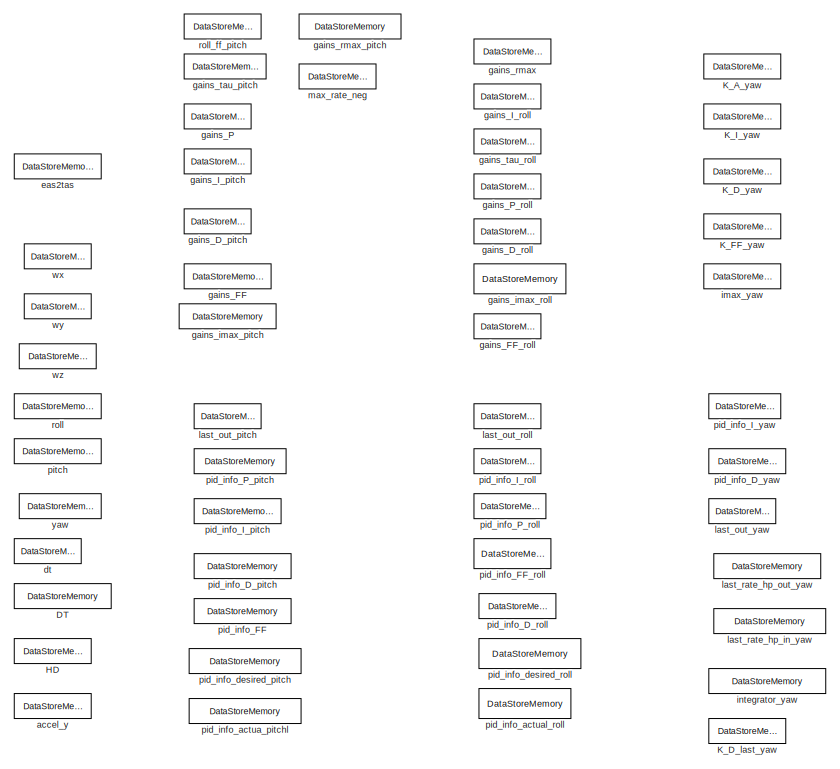
[diagram: root canvas - part 1/7, top right region]
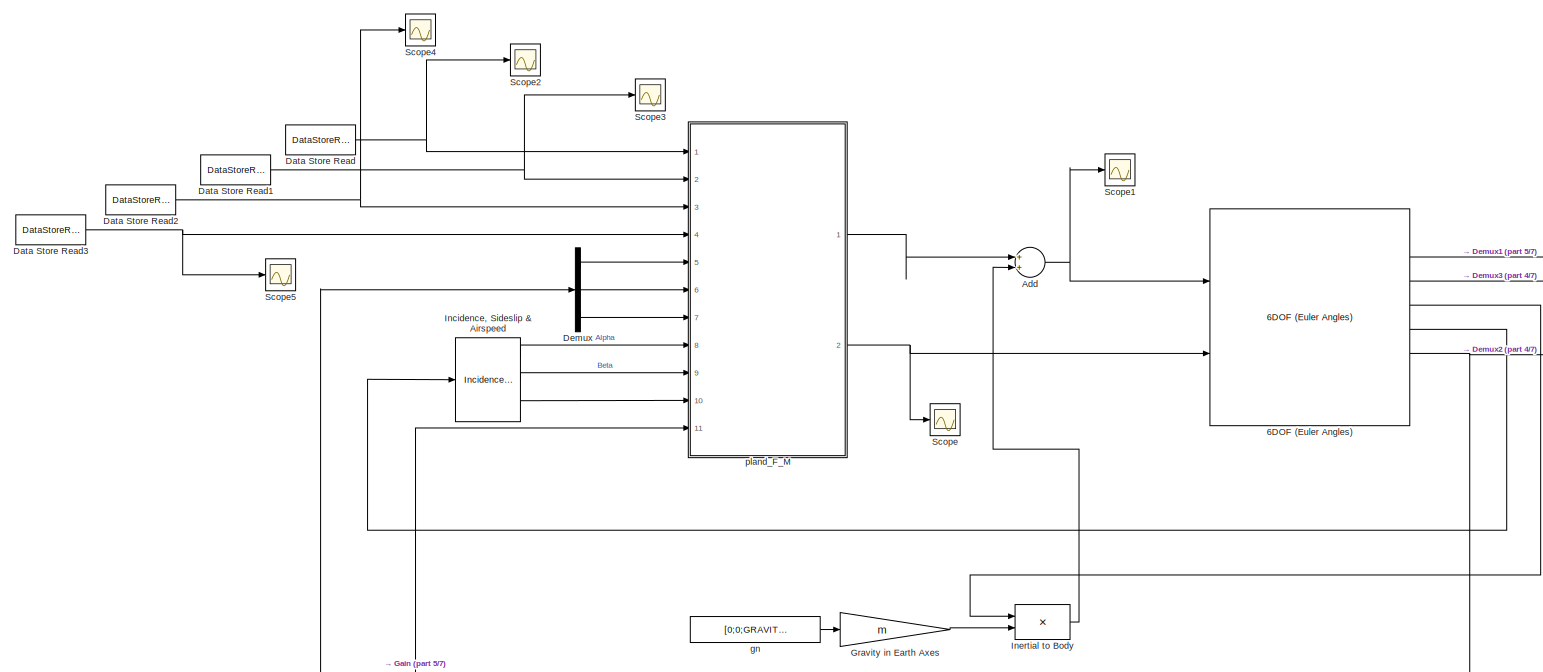
[diagram: root canvas - part 2/7, top left region]
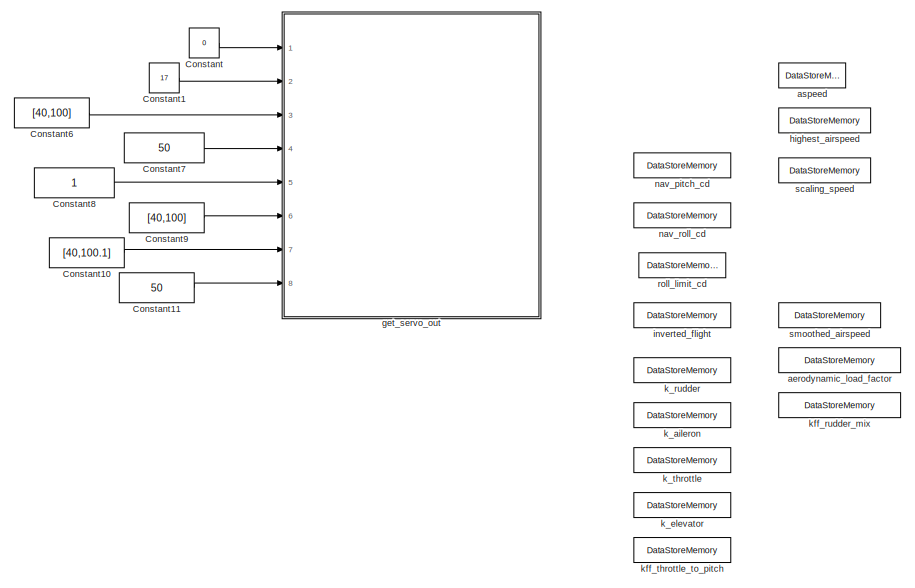
[diagram: root canvas - part 3/7, top right region]
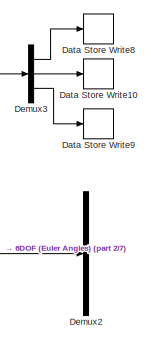
[diagram: root canvas - part 4/7, top center region]
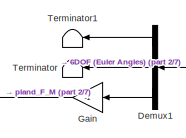
[diagram: root canvas - part 5/7, middle left region]
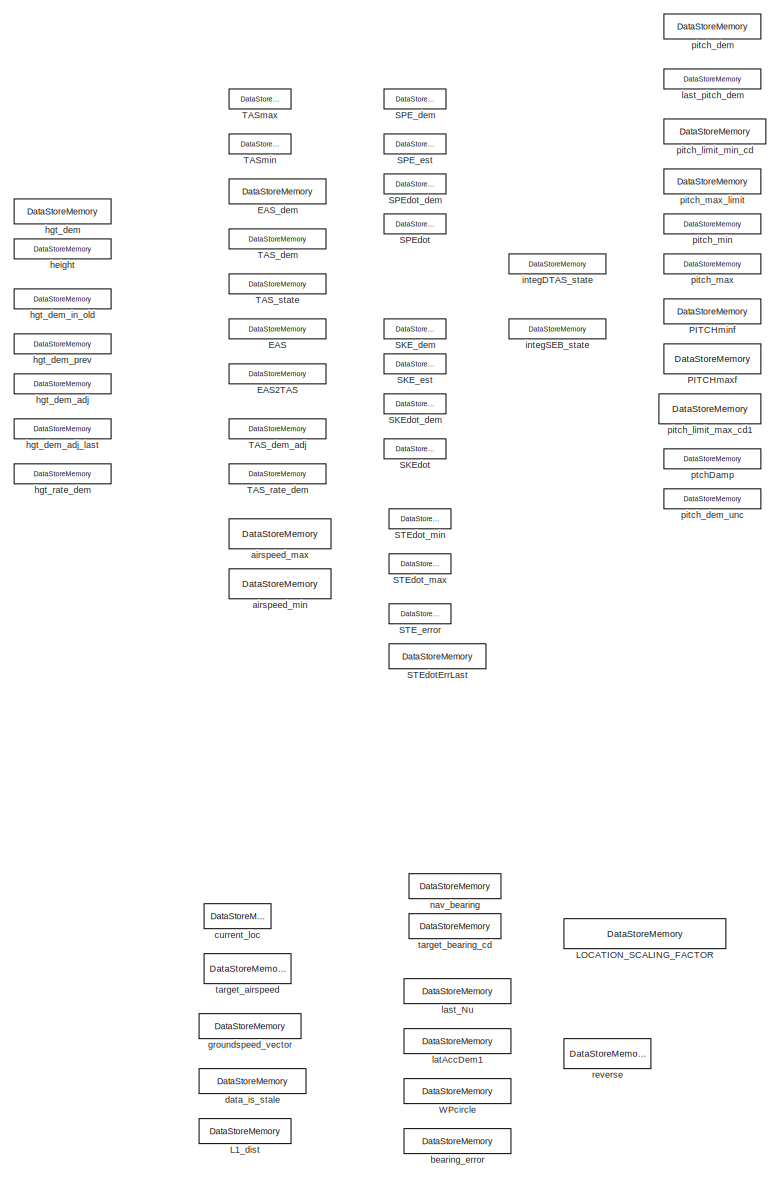
[diagram: root canvas - part 6/7, bottom right region]
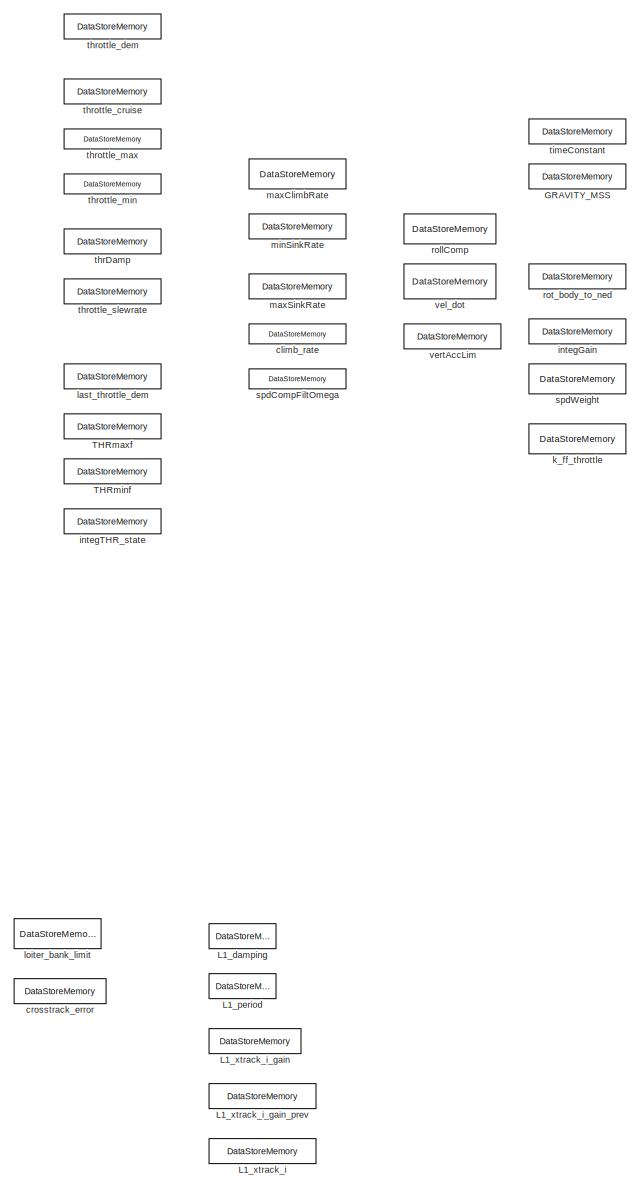
[diagram: root canvas - part 7/7, bottom right region]
MODEL slx_bc684115138f
KIND model
CONFIG AbsTol = auto
CONFIG EnableMultiTasking = off
CONFIG FixedStep = dt
CONFIG MaxStep = auto
CONFIG MinStep = auto
CONFIG RelTol = 1e-3
CONFIG SampleTimeConstraint = Unconstrained
CONFIG Solver = FixedStepAuto
CONFIG SolverName = FixedStepAuto
CONFIG StartTime = 0.0
CONFIG StopTime = 10.0
BLOCK [Reference] 6DOF (Euler Angles)  REF=shared6dof/6DOF (Euler Angles)
  Ports = [2, 8]
  SourceBlock = shared6dof/6DOF (Euler Angles)
  SourceProductBaseCode = AE
  SourceProductName = Aerospace Blockset
  SourceType = 6DOF EoM (Body Axis)
BLOCK [Sum] Add
  InputSameDT = off
  OutDataTypeStr = Inherit: Inherit via internal rule
  Ports = [2, 1]
  SaturateOnIntegerOverflow = off
BLOCK [Constant] Constant
  Value = 0
BLOCK [Constant] Constant1
  Value = 17
BLOCK [Constant] Constant10
  Value = [40,100.1]
BLOCK [Constant] Constant11
  Value = 50
BLOCK [Constant] Constant6
  Value = [40,100]
BLOCK [Constant] Constant7
  Value = 50
BLOCK [Constant] Constant8
BLOCK [Constant] Constant9
  Value = [40,100]
BLOCK [DataStoreMemory] DT
  DataStoreName = DT
  InitialValue = DT
  OutDataTypeStr = double
  ReadBeforeWriteMsg = warning
  ShowAdditionalParam = off
  SignalType = real
  VectorParams1D = off
  WriteAfterReadMsg = warning
  WriteAfterWriteMsg = warning
BLOCK [DataStoreRead] Data Store Read
  DataStoreName = k_rudder
  Ports = [0, 1]
BLOCK [DataStoreRead] Data Store Read1
  DataStoreName = k_aileron
  Ports = [0, 1]
BLOCK [DataStoreRead] Data Store Read2
  DataStoreName = k_throttle
  Ports = [0, 1]
BLOCK [DataStoreRead] Data Store Read3
  DataStoreName = k_elevator
  Ports = [0, 1]
BLOCK [DataStoreWrite] Data Store Write10
  DataStoreName = pitch
  Ports = [1]
BLOCK [DataStoreWrite] Data Store Write8
  DataStoreName = roll
  Ports = [1]
BLOCK [DataStoreWrite] Data Store Write9
  DataStoreName = yaw
  Ports = [1]
BLOCK [Demux] Demux
  DisplayOption = bar
  Outputs = 3
  Ports = [1, 3]
BLOCK [Demux] Demux1
  DisplayOption = bar
  Outputs = 3
  Ports = [1, 3]
BLOCK [Demux] Demux2
  DisplayOption = bar
  Outputs = 3
  Ports = [1, 3]
BLOCK [Demux] Demux3
  DisplayOption = bar
  Outputs = 3
  Ports = [1, 3]
BLOCK [DataStoreMemory] EAS
  DataStoreName = EAS
  InitialValue = EAS
  OutDataTypeStr = double
  ReadBeforeWriteMsg = warning
  ShowAdditionalParam = off
  SignalType = real
  VectorParams1D = off
  WriteAfterReadMsg = warning
  WriteAfterWriteMsg = warning
BLOCK [DataStoreMemory] EAS2TAS
  DataStoreName = EAS2TAS
  InitialValue = EAS2TAS
  OutDataTypeStr = double
  ReadBeforeWriteMsg = warning
  ShowAdditionalParam = off
  SignalType = real
  VectorParams1D = off
  WriteAfterReadMsg = warning
  WriteAfterWriteMsg = warning
BLOCK [DataStoreMemory] EAS_dem
  DataStoreName = EAS_dem
  InitialValue = EAS_dem
  OutDataTypeStr = double
  ReadBeforeWriteMsg = warning
  ShowAdditionalParam = off
  SignalType = real
  VectorParams1D = off
  WriteAfterReadMsg = warning
  WriteAfterWriteMsg = warning
BLOCK [DataStoreMemory] GRAVITY_MSS
  DataStoreName = GRAVITY_MSS
  InitialValue = GRAVITY_MSS
  OutDataTypeStr = double
  ReadBeforeWriteMsg = warning
  ShowAdditionalParam = off
  SignalType = real
  VectorParams1D = off
  WriteAfterReadMsg = warning
  WriteAfterWriteMsg = warning
BLOCK [Gain] Gain
  Gain = -1
  OutDataTypeStr = Inherit: Inherit via internal rule
  ParamDataTypeStr = Inherit: Inherit via internal rule
  SaturateOnIntegerOverflow = off
BLOCK [Gain] Gravity in Earth Axes
  Gain = m
BLOCK [DataStoreMemory] HD
  DataStoreName = HD
  InitialValue = HD
  OutDataTypeStr = double
  ReadBeforeWriteMsg = warning
  ShowAdditionalParam = off
  SignalType = real
  WriteAfterReadMsg = warning
  WriteAfterWriteMsg = warning
BLOCK [Reference] Incidence, Sideslip & Airspeed  REF=aerolibasang/Incidence, Sideslip,
& Airspeed
  Ports = [1, 3]
  SourceBlock = aerolibasang/Incidence, Sideslip,\n& Airspeed
  SourceProductBaseCode = AE
  SourceProductName = Aerospace Blockset
  SourceType = Incidence,Sideslip,&Airspeed
BLOCK [Product] Inertial to Body
  Multiplication = Matrix(*)
  Ports = [2, 1]
  RndMeth = Floor
BLOCK [DataStoreMemory] K_A_yaw
  DataStoreName = K_A_yaw
  InitialValue = K_A_yaw
  OutDataTypeStr = double
  ReadBeforeWriteMsg = warning
  ShowAdditionalParam = off
  SignalType = real
  WriteAfterReadMsg = warning
  WriteAfterWriteMsg = warning
BLOCK [DataStoreMemory] K_D_last_yaw
  DataStoreName = K_D_last_yaw
  InitialValue = K_D_last_yaw
  OutDataTypeStr = double
  ReadBeforeWriteMsg = warning
  ShowAdditionalParam = off
  SignalType = real
  WriteAfterReadMsg = warning
  WriteAfterWriteMsg = warning
BLOCK [DataStoreMemory] K_D_yaw
  DataStoreName = K_D_yaw
  InitialValue = K_D_yaw
  OutDataTypeStr = double
  ReadBeforeWriteMsg = warning
  ShowAdditionalParam = off
  SignalType = real
  WriteAfterReadMsg = warning
  WriteAfterWriteMsg = warning
BLOCK [DataStoreMemory] K_FF_yaw
  DataStoreName = K_FF_yaw
  InitialValue = K_FF_yaw
  OutDataTypeStr = double
  ReadBeforeWriteMsg = warning
  ShowAdditionalParam = off
  SignalType = real
  WriteAfterReadMsg = warning
  WriteAfterWriteMsg = warning
BLOCK [DataStoreMemory] K_I_yaw
  DataStoreName = K_I_yaw
  InitialValue = K_I_yaw
  OutDataTypeStr = double
  ReadBeforeWriteMsg = warning
  ShowAdditionalParam = off
  SignalType = real
  WriteAfterReadMsg = warning
  WriteAfterWriteMsg = warning
BLOCK [DataStoreMemory] L1_damping
  DataStoreName = L1_damping
  InitialValue = L1_damping
  OutDataTypeStr = double
  ReadBeforeWriteMsg = warning
  ShowAdditionalParam = off
  SignalType = real
  VectorParams1D = off
  WriteAfterReadMsg = warning
  WriteAfterWriteMsg = warning
BLOCK [DataStoreMemory] L1_dist
  DataStoreName = L1_dist
  InitialValue = L1_dist
  OutDataTypeStr = double
  ReadBeforeWriteMsg = warning
  ShowAdditionalParam = off
  SignalType = real
  VectorParams1D = off
  WriteAfterReadMsg = warning
  WriteAfterWriteMsg = warning
BLOCK [DataStoreMemory] L1_period
  DataStoreName = L1_period
  InitialValue = L1_period
  OutDataTypeStr = double
  ReadBeforeWriteMsg = warning
  ShowAdditionalParam = off
  SignalType = real
  VectorParams1D = off
  WriteAfterReadMsg = warning
  WriteAfterWriteMsg = warning
BLOCK [DataStoreMemory] L1_xtrack_i
  DataStoreName = L1_xtrack_i
  InitialValue = L1_xtrack_i
  OutDataTypeStr = double
  ReadBeforeWriteMsg = warning
  ShowAdditionalParam = off
  SignalType = real
  VectorParams1D = off
  WriteAfterReadMsg = warning
  WriteAfterWriteMsg = warning
BLOCK [DataStoreMemory] L1_xtrack_i_gain
  DataStoreName = L1_xtrack_i_gain
  InitialValue = L1_xtrack_i_gain
  OutDataTypeStr = double
  ReadBeforeWriteMsg = warning
  ShowAdditionalParam = off
  SignalType = real
  VectorParams1D = off
  WriteAfterReadMsg = warning
  WriteAfterWriteMsg = warning
BLOCK [DataStoreMemory] L1_xtrack_i_gain_prev
  DataStoreName = L1_xtrack_i_gain_prev
  InitialValue = L1_xtrack_i_gain_prev
  OutDataTypeStr = double
  ReadBeforeWriteMsg = warning
  ShowAdditionalParam = off
  SignalType = real
  VectorParams1D = off
  WriteAfterReadMsg = warning
  WriteAfterWriteMsg = warning
BLOCK [DataStoreMemory] LOCATION_SCALING_FACTOR
  DataStoreName = LOCATION_SCALING_FACTOR
  InitialValue = LOCATION_SCALING_FACTOR
  OutDataTypeStr = double
  ReadBeforeWriteMsg = warning
  ShowAdditionalParam = off
  SignalType = real
  VectorParams1D = off
  WriteAfterReadMsg = warning
  WriteAfterWriteMsg = warning
BLOCK [DataStoreMemory] PITCHmaxf
  DataStoreName = PITCHmaxf
  InitialValue = PITCHmaxf
  OutDataTypeStr = double
  ReadBeforeWriteMsg = warning
  ShowAdditionalParam = off
  SignalType = real
  VectorParams1D = off
  WriteAfterReadMsg = warning
  WriteAfterWriteMsg = warning
BLOCK [DataStoreMemory] PITCHminf
  DataStoreName = PITCHminf
  InitialValue = PITCHminf
  OutDataTypeStr = double
  ReadBeforeWriteMsg = warning
  ShowAdditionalParam = off
  SignalType = real
  VectorParams1D = off
  WriteAfterReadMsg = warning
  WriteAfterWriteMsg = warning
BLOCK [DataStoreMemory] SKE_dem
  DataStoreName = SKE_dem
  InitialValue = SKE_dem
  OutDataTypeStr = double
  ReadBeforeWriteMsg = warning
  ShowAdditionalParam = off
  SignalType = real
  VectorParams1D = off
  WriteAfterReadMsg = warning
  WriteAfterWriteMsg = warning
BLOCK [DataStoreMemory] SKE_est
  DataStoreName = SKE_est
  InitialValue = SKE_est
  OutDataTypeStr = double
  ReadBeforeWriteMsg = warning
  ShowAdditionalParam = off
  SignalType = real
  VectorParams1D = off
  WriteAfterReadMsg = warning
  WriteAfterWriteMsg = warning
BLOCK [DataStoreMemory] SKEdot
  DataStoreName = SKEdot
  InitialValue = SKEdot
  OutDataTypeStr = double
  ReadBeforeWriteMsg = warning
  ShowAdditionalParam = off
  SignalType = real
  VectorParams1D = off
  WriteAfterReadMsg = warning
  WriteAfterWriteMsg = warning
BLOCK [DataStoreMemory] SKEdot_dem
  DataStoreName = SKEdot_dem
  InitialValue = SKEdot_dem
  OutDataTypeStr = double
  ReadBeforeWriteMsg = warning
  ShowAdditionalParam = off
  SignalType = real
  VectorParams1D = off
  WriteAfterReadMsg = warning
  WriteAfterWriteMsg = warning
BLOCK [DataStoreMemory] SPE_dem
  DataStoreName = SPE_dem
  InitialValue = SPE_dem
  OutDataTypeStr = double
  ReadBeforeWriteMsg = warning
  ShowAdditionalParam = off
  SignalType = real
  VectorParams1D = off
  WriteAfterReadMsg = warning
  WriteAfterWriteMsg = warning
BLOCK [DataStoreMemory] SPE_est
  DataStoreName = SPE_est
  InitialValue = SPE_est
  OutDataTypeStr = double
  ReadBeforeWriteMsg = warning
  ShowAdditionalParam = off
  SignalType = real
  VectorParams1D = off
  WriteAfterReadMsg = warning
  WriteAfterWriteMsg = warning
BLOCK [DataStoreMemory] SPEdot
  DataStoreName = SPEdot
  InitialValue = SPEdot
  OutDataTypeStr = double
  ReadBeforeWriteMsg = warning
  ShowAdditionalParam = off
  SignalType = real
  VectorParams1D = off
  WriteAfterReadMsg = warning
  WriteAfterWriteMsg = warning
BLOCK [DataStoreMemory] SPEdot_dem
  DataStoreName = SPEdot_dem
  InitialValue = SPEdot_dem
  OutDataTypeStr = double
  ReadBeforeWriteMsg = warning
  ShowAdditionalParam = off
  SignalType = real
  VectorParams1D = off
  WriteAfterReadMsg = warning
  WriteAfterWriteMsg = warning
BLOCK [DataStoreMemory] STE_error
  DataStoreName = STE_error
  InitialValue = STE_error
  OutDataTypeStr = double
  ReadBeforeWriteMsg = warning
  ShowAdditionalParam = off
  SignalType = real
  VectorParams1D = off
  WriteAfterReadMsg = warning
  WriteAfterWriteMsg = warning
BLOCK [DataStoreMemory] STEdotErrLast
  DataStoreName = STEdotErrLast
  InitialValue = STEdotErrLast
  OutDataTypeStr = double
  ReadBeforeWriteMsg = warning
  ShowAdditionalParam = off
  SignalType = real
  VectorParams1D = off
  WriteAfterReadMsg = warning
  WriteAfterWriteMsg = warning
BLOCK [DataStoreMemory] STEdot_max
  DataStoreName = STEdot_max
  InitialValue = STEdot_max
  OutDataTypeStr = double
  ReadBeforeWriteMsg = warning
  ShowAdditionalParam = off
  SignalType = real
  VectorParams1D = off
  WriteAfterReadMsg = warning
  WriteAfterWriteMsg = warning
BLOCK [DataStoreMemory] STEdot_min
  DataStoreName = STEdot_min
  InitialValue = STEdot_min
  OutDataTypeStr = double
  ReadBeforeWriteMsg = warning
  ShowAdditionalParam = off
  SignalType = real
  VectorParams1D = off
  WriteAfterReadMsg = warning
  WriteAfterWriteMsg = warning
BLOCK [Scope] Scope
  Floating = off
  NumInputPorts = 1
  Ports = [1]
  ScopeSpecificationString = Simulink.scopes.TimeScopeBlockCfg('CurrentConfiguration', extmgr.ConfigurationSet(extmgr.Configuration('Core','General UI',true),extmgr.Configuration('Core','Source UI',true),extmgr.Configuration('Sources','WiredSimulink',true),extmgr.Configuration('Visuals','Time Domain',true,'SerializedDisplays',{struct('MinYLimReal','-1.49656','MaxYLimReal','6.05695','YLabelReal','','MinYLimMag','0.00000','MaxY...<+1697ch>
BLOCK [Scope] Scope1
  Floating = off
  NumInputPorts = 1
  Ports = [1]
  ScopeSpecificationString = Simulink.scopes.TimeScopeBlockCfg('CurrentConfiguration', extmgr.ConfigurationSet(extmgr.Configuration('Core','General UI',true),extmgr.Configuration('Core','Source UI',true),extmgr.Configuration('Sources','WiredSimulink',true,'DataLoggingVariableName','ScopeData1'),extmgr.Configuration('Visuals','Time Domain',true,'SerializedDisplays',{struct('MinYLimReal','-191.70517','MaxYLimReal','187.29828','...<+1772ch>
BLOCK [Scope] Scope2
  Floating = off
  NumInputPorts = 1
  Ports = [1]
  ScopeSpecificationString = Simulink.scopes.TimeScopeBlockCfg('CurrentConfiguration', extmgr.ConfigurationSet(extmgr.Configuration('Core','General UI',true),extmgr.Configuration('Core','Source UI',true),extmgr.Configuration('Sources','WiredSimulink',true,'DataLoggingVariableName','ScopeData2'),extmgr.Configuration('Visuals','Time Domain',true,'SerializedDisplays',{struct('MinYLimReal','-1.00000','MaxYLimReal','1.00000','YLab...<+1719ch>
BLOCK [Scope] Scope3
  Floating = off
  NumInputPorts = 1
  Ports = [1]
  ScopeSpecificationString = Simulink.scopes.TimeScopeBlockCfg('CurrentConfiguration', extmgr.ConfigurationSet(extmgr.Configuration('Core','General UI',true),extmgr.Configuration('Core','Source UI',true),extmgr.Configuration('Sources','WiredSimulink',true,'DataLoggingVariableName','ScopeData3'),extmgr.Configuration('Visuals','Time Domain',true,'SerializedDisplays',{struct('MinYLimReal','-265.625','MaxYLimReal','2390.625','YLa...<+1753ch>
BLOCK [Scope] Scope4
  Floating = off
  NumInputPorts = 1
  Ports = [1]
  ScopeSpecificationString = Simulink.scopes.TimeScopeBlockCfg('CurrentConfiguration', extmgr.ConfigurationSet(extmgr.Configuration('Core','General UI',true),extmgr.Configuration('Core','Source UI',true),extmgr.Configuration('Sources','WiredSimulink',true,'DataLoggingVariableName','ScopeData4'),extmgr.Configuration('Visuals','Time Domain',true,'SerializedDisplays',{struct('MinYLimReal','-0.00125','MaxYLimReal','0.01124','YLab...<+1747ch>
BLOCK [Scope] Scope5
  Floating = off
  NumInputPorts = 1
  Ports = [1]
  ScopeSpecificationString = Simulink.scopes.TimeScopeBlockCfg('CurrentConfiguration', extmgr.ConfigurationSet(extmgr.Configuration('Core','General UI',true),extmgr.Configuration('Core','Source UI',true),extmgr.Configuration('Sources','WiredSimulink',true,'DataLoggingVariableName','ScopeData5'),extmgr.Configuration('Visuals','Time Domain',true,'SerializedDisplays',{struct('MinYLimReal','-376.59375','MaxYLimReal','3389.34375',...<+1738ch>
BLOCK [DataStoreMemory] TAS_dem
  DataStoreName = TAS_dem
  InitialValue = TAS_dem
  OutDataTypeStr = double
  ReadBeforeWriteMsg = warning
  ShowAdditionalParam = off
  SignalType = real
  VectorParams1D = off
  WriteAfterReadMsg = warning
  WriteAfterWriteMsg = warning
BLOCK [DataStoreMemory] TAS_dem_adj
  DataStoreName = TAS_dem_adj
  InitialValue = TAS_dem_adj
  OutDataTypeStr = double
  ReadBeforeWriteMsg = warning
  ShowAdditionalParam = off
  SignalType = real
  VectorParams1D = off
  WriteAfterReadMsg = warning
  WriteAfterWriteMsg = warning
BLOCK [DataStoreMemory] TAS_rate_dem
  DataStoreName = TAS_rate_dem
  InitialValue = TAS_rate_dem
  OutDataTypeStr = double
  ReadBeforeWriteMsg = warning
  ShowAdditionalParam = off
  SignalType = real
  VectorParams1D = off
  WriteAfterReadMsg = warning
  WriteAfterWriteMsg = warning
BLOCK [DataStoreMemory] TAS_state
  DataStoreName = TAS_state
  InitialValue = TAS_state
  OutDataTypeStr = double
  ReadBeforeWriteMsg = warning
  ShowAdditionalParam = off
  SignalType = real
  VectorParams1D = off
  WriteAfterReadMsg = warning
  WriteAfterWriteMsg = warning
BLOCK [DataStoreMemory] TASmax
  DataStoreName = TASmax
  InitialValue = TASmax
  OutDataTypeStr = double
  ReadBeforeWriteMsg = warning
  ShowAdditionalParam = off
  SignalType = real
  VectorParams1D = off
  WriteAfterReadMsg = warning
  WriteAfterWriteMsg = warning
BLOCK [DataStoreMemory] TASmin
  DataStoreName = TASmin
  InitialValue = TASmin
  OutDataTypeStr = double
  ReadBeforeWriteMsg = warning
  ShowAdditionalParam = off
  SignalType = real
  VectorParams1D = off
  WriteAfterReadMsg = warning
  WriteAfterWriteMsg = warning
BLOCK [DataStoreMemory] THRmaxf
  DataStoreName = THRmaxf
  InitialValue = THRmaxf
  OutDataTypeStr = double
  ReadBeforeWriteMsg = warning
  ShowAdditionalParam = off
  SignalType = real
  VectorParams1D = off
  WriteAfterReadMsg = warning
  WriteAfterWriteMsg = warning
BLOCK [DataStoreMemory] THRminf
  DataStoreName = THRminf
  InitialValue = THRminf
  OutDataTypeStr = double
  ReadBeforeWriteMsg = warning
  ShowAdditionalParam = off
  SignalType = real
  VectorParams1D = off
  WriteAfterReadMsg = warning
  WriteAfterWriteMsg = warning
BLOCK [Terminator] Terminator
BLOCK [Terminator] Terminator1
BLOCK [DataStoreMemory] WPcircle
  DataStoreName = WPcircle
  InitialValue = WPcircle
  OutDataTypeStr = double
  ReadBeforeWriteMsg = warning
  ShowAdditionalParam = off
  SignalType = real
  VectorParams1D = off
  WriteAfterReadMsg = warning
  WriteAfterWriteMsg = warning
BLOCK [DataStoreMemory] accel_y
  DataStoreName = accel_y
  InitialValue = accel_y
  OutDataTypeStr = double
  ReadBeforeWriteMsg = warning
  ShowAdditionalParam = off
  SignalType = real
  WriteAfterReadMsg = warning
  WriteAfterWriteMsg = warning
BLOCK [DataStoreMemory] aerodynamic_load_factor
  DataStoreName = aerodynamic_load_factor
  InitialValue = aerodynamic_load_factor
  OutDataTypeStr = double
  ReadBeforeWriteMsg = warning
  ShowAdditionalParam = off
  SignalType = real
  WriteAfterReadMsg = warning
  WriteAfterWriteMsg = warning
BLOCK [DataStoreMemory] airspeed_max
  DataStoreName = airspeed_max
  InitialValue = airspeed_max
  OutDataTypeStr = double
  ReadBeforeWriteMsg = warning
  ShowAdditionalParam = off
  SignalType = real
  VectorParams1D = off
  WriteAfterReadMsg = warning
  WriteAfterWriteMsg = warning
BLOCK [DataStoreMemory] airspeed_min
  DataStoreName = airspeed_min
  InitialValue = airspeed_min
  OutDataTypeStr = double
  ReadBeforeWriteMsg = warning
  ShowAdditionalParam = off
  SignalType = real
  VectorParams1D = off
  WriteAfterReadMsg = warning
  WriteAfterWriteMsg = warning
BLOCK [DataStoreMemory] aspeed
  DataStoreName = aspeed
  InitialValue = aspeed
  OutDataTypeStr = double
  ReadBeforeWriteMsg = warning
  ShowAdditionalParam = off
  SignalType = real
  WriteAfterReadMsg = warning
  WriteAfterWriteMsg = warning
BLOCK [DataStoreMemory] bearing_error
  DataStoreName = bearing_error
  InitialValue = bearing_error
  OutDataTypeStr = double
  ReadBeforeWriteMsg = warning
  ShowAdditionalParam = off
  SignalType = real
  VectorParams1D = off
  WriteAfterReadMsg = warning
  WriteAfterWriteMsg = warning
BLOCK [DataStoreMemory] climb_rate
  DataStoreName = climb_rate
  InitialValue = climb_rate
  OutDataTypeStr = double
  ReadBeforeWriteMsg = warning
  ShowAdditionalParam = off
  SignalType = real
  VectorParams1D = off
  WriteAfterReadMsg = warning
  WriteAfterWriteMsg = warning
BLOCK [DataStoreMemory] crosstrack_error
  DataStoreName = crosstrack_error
  InitialValue = crosstrack_error
  OutDataTypeStr = double
  ReadBeforeWriteMsg = warning
  ShowAdditionalParam = off
  SignalType = real
  VectorParams1D = off
  WriteAfterReadMsg = warning
  WriteAfterWriteMsg = warning
BLOCK [DataStoreMemory] current_loc
  DataStoreName = current_loc
  InitialValue = current_loc
  OutDataTypeStr = double
  ReadBeforeWriteMsg = warning
  ShowAdditionalParam = off
  SignalType = real
  VectorParams1D = off
  WriteAfterReadMsg = warning
  WriteAfterWriteMsg = warning
BLOCK [DataStoreMemory] data_is_stale
  DataStoreName = data_is_stale
  InitialValue = data_is_stale
  OutDataTypeStr = double
  ReadBeforeWriteMsg = warning
  ShowAdditionalParam = off
  SignalType = real
  VectorParams1D = off
  WriteAfterReadMsg = warning
  WriteAfterWriteMsg = warning
BLOCK [DataStoreMemory] dt
  DataStoreName = dt
  InitialValue = dt
  OutDataTypeStr = double
  ReadBeforeWriteMsg = warning
  ShowAdditionalParam = off
  SignalType = real
  WriteAfterReadMsg = warning
  WriteAfterWriteMsg = warning
BLOCK [DataStoreMemory] eas2tas
  DataStoreName = eas2tas
  InitialValue = eas2tas
  OutDataTypeStr = double
  ReadBeforeWriteMsg = warning
  ShowAdditionalParam = off
  SignalType = real
  WriteAfterReadMsg = warning
  WriteAfterWriteMsg = warning
BLOCK [DataStoreMemory] gains_D_pitch
  DataStoreName = gains_D_pitch
  InitialValue = gains_D_pitch
  OutDataTypeStr = double
  ReadBeforeWriteMsg = warning
  ShowAdditionalParam = off
  SignalType = real
  WriteAfterReadMsg = warning
  WriteAfterWriteMsg = warning
BLOCK [DataStoreMemory] gains_D_roll
  DataStoreName = gains_D_roll
  InitialValue = gains_D_roll
  OutDataTypeStr = double
  ReadBeforeWriteMsg = warning
  ShowAdditionalParam = off
  SignalType = real
  WriteAfterReadMsg = warning
  WriteAfterWriteMsg = warning
BLOCK [DataStoreMemory] gains_FF
  DataStoreName = gains_FF_pitch
  InitialValue = gains_FF_pitch
  OutDataTypeStr = double
  ReadBeforeWriteMsg = warning
  ShowAdditionalParam = off
  SignalType = real
  WriteAfterReadMsg = warning
  WriteAfterWriteMsg = warning
BLOCK [DataStoreMemory] gains_FF_roll
  DataStoreName = gains_FF_roll
  InitialValue = gains_FF_roll
  OutDataTypeStr = double
  ReadBeforeWriteMsg = warning
  ShowAdditionalParam = off
  SignalType = real
  WriteAfterReadMsg = warning
  WriteAfterWriteMsg = warning
BLOCK [DataStoreMemory] gains_I_pitch
  DataStoreName = gains_I_pitch
  InitialValue = gains_I_pitch
  OutDataTypeStr = double
  ReadBeforeWriteMsg = warning
  ShowAdditionalParam = off
  SignalType = real
  WriteAfterReadMsg = warning
  WriteAfterWriteMsg = warning
BLOCK [DataStoreMemory] gains_I_roll
  DataStoreName = gains_I_roll
  InitialValue = gains_I_roll
  OutDataTypeStr = double
  ReadBeforeWriteMsg = warning
  ShowAdditionalParam = off
  SignalType = real
  WriteAfterReadMsg = warning
  WriteAfterWriteMsg = warning
BLOCK [DataStoreMemory] gains_P
  DataStoreName = gains_P_pitch
  InitialValue = gains_P_pitch
  OutDataTypeStr = double
  ReadBeforeWriteMsg = warning
  ShowAdditionalParam = off
  SignalType = real
  WriteAfterReadMsg = warning
  WriteAfterWriteMsg = warning
BLOCK [DataStoreMemory] gains_P_roll
  DataStoreName = gains_P_roll
  InitialValue = gains_P_roll
  OutDataTypeStr = double
  ReadBeforeWriteMsg = warning
  ShowAdditionalParam = off
  SignalType = real
  WriteAfterReadMsg = warning
  WriteAfterWriteMsg = warning
BLOCK [DataStoreMemory] gains_imax_pitch
  DataStoreName = gains_imax_pitch
  InitialValue = gains_imax_pitch
  OutDataTypeStr = double
  ReadBeforeWriteMsg = warning
  ShowAdditionalParam = off
  SignalType = real
  WriteAfterReadMsg = warning
  WriteAfterWriteMsg = warning
BLOCK [DataStoreMemory] gains_imax_roll
  DataStoreName = gains_imax_roll
  InitialValue = gains_imax_roll
  OutDataTypeStr = double
  ReadBeforeWriteMsg = warning
  ShowAdditionalParam = off
  SignalType = real
  WriteAfterReadMsg = warning
  WriteAfterWriteMsg = warning
BLOCK [DataStoreMemory] gains_rmax
  DataStoreName = gains_rmax_roll
  InitialValue = gains_rmax_roll
  OutDataTypeStr = double
  ReadBeforeWriteMsg = warning
  ShowAdditionalParam = off
  SignalType = real
  WriteAfterReadMsg = warning
  WriteAfterWriteMsg = warning
BLOCK [DataStoreMemory] gains_rmax_pitch
  DataStoreName = gains_rmax_pitch
  InitialValue = gains_rmax_pitch
  OutDataTypeStr = double
  ReadBeforeWriteMsg = warning
  ShowAdditionalParam = off
  SignalType = real
  WriteAfterReadMsg = warning
  WriteAfterWriteMsg = warning
BLOCK [DataStoreMemory] gains_tau_pitch
  DataStoreName = gains_tau_pitch
  InitialValue = gains_tau_pitch
  OutDataTypeStr = double
  ReadBeforeWriteMsg = warning
  ShowAdditionalParam = off
  SignalType = real
  WriteAfterReadMsg = warning
  WriteAfterWriteMsg = warning
BLOCK [DataStoreMemory] gains_tau_roll
  DataStoreName = gains_tau_roll
  InitialValue = gains_tau_roll
  OutDataTypeStr = double
  ReadBeforeWriteMsg = warning
  ShowAdditionalParam = off
  SignalType = real
  WriteAfterReadMsg = warning
  WriteAfterWriteMsg = warning
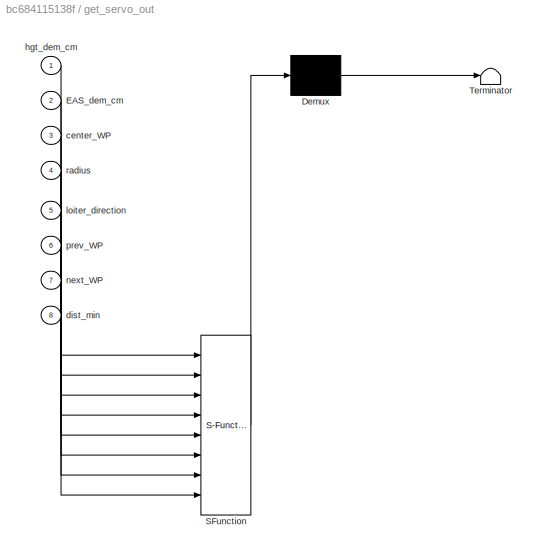
BLOCK [SubSystem] get_servo_out
  ErrorFcn = Stateflow.Translate.translate
  PermitHierarchicalResolution = ExplicitOnly
  Ports = [8]
  RequestExecContextInheritance = off
  SFBlockType = MATLAB Function
  TreatAsAtomicUnit = on
BLOCK [Demux] get_servo_out/ Demux 
  Outputs = 1
  Ports = [1, 1]
BLOCK [S-Function] get_servo_out/ SFunction 
  EnableBusSupport = on
  FunctionName = sf_sfun
  PortCounts = [8 1]
  Ports = [8, 1]
  SFcnIsStateOwnerBlock = off
  SFunctionDeploymentMode = off
  Tag = Stateflow S-Function att1 2
BLOCK [Terminator] get_servo_out/ Terminator 
BLOCK [Inport] get_servo_out/EAS_dem_cm
  IconDisplay = Port number
  Port = 2
BLOCK [Inport] get_servo_out/center_WP
  IconDisplay = Port number
  Port = 3
BLOCK [Inport] get_servo_out/dist_min
  IconDisplay = Port number
  Port = 8
BLOCK [Inport] get_servo_out/hgt_dem_cm
  IconDisplay = Port number
BLOCK [Inport] get_servo_out/loiter_direction
  IconDisplay = Port number
  Port = 5
BLOCK [Inport] get_servo_out/next_WP
  IconDisplay = Port number
  Port = 7
BLOCK [Inport] get_servo_out/prev_WP
  IconDisplay = Port number
  Port = 6
BLOCK [Inport] get_servo_out/radius
  IconDisplay = Port number
  Port = 4
BLOCK [Constant] gn
  Value = [0;0;GRAVITY_MSS]
BLOCK [DataStoreMemory] groundspeed_vector
  DataStoreName = groundspeed_vector
  InitialValue = groundspeed_vector
  OutDataTypeStr = double
  ReadBeforeWriteMsg = warning
  ShowAdditionalParam = off
  SignalType = real
  VectorParams1D = off
  WriteAfterReadMsg = warning
  WriteAfterWriteMsg = warning
BLOCK [DataStoreMemory] height
  DataStoreName = height
  InitialValue = height
  OutDataTypeStr = double
  ReadBeforeWriteMsg = warning
  ShowAdditionalParam = off
  SignalType = real
  VectorParams1D = off
  WriteAfterReadMsg = warning
  WriteAfterWriteMsg = warning
BLOCK [DataStoreMemory] hgt_dem
  DataStoreName = hgt_dem
  InitialValue = hgt_dem
  OutDataTypeStr = double
  ReadBeforeWriteMsg = warning
  ShowAdditionalParam = off
  SignalType = real
  VectorParams1D = off
  WriteAfterReadMsg = warning
  WriteAfterWriteMsg = warning
BLOCK [DataStoreMemory] hgt_dem_adj
  DataStoreName = hgt_dem_adj
  InitialValue = hgt_dem_adj
  OutDataTypeStr = double
  ReadBeforeWriteMsg = warning
  ShowAdditionalParam = off
  SignalType = real
  VectorParams1D = off
  WriteAfterReadMsg = warning
  WriteAfterWriteMsg = warning
BLOCK [DataStoreMemory] hgt_dem_adj_last
  DataStoreName = hgt_dem_adj_last
  InitialValue = hgt_dem_adj_last
  OutDataTypeStr = double
  ReadBeforeWriteMsg = warning
  ShowAdditionalParam = off
  SignalType = real
  VectorParams1D = off
  WriteAfterReadMsg = warning
  WriteAfterWriteMsg = warning
BLOCK [DataStoreMemory] hgt_dem_in_old
  DataStoreName = hgt_dem_in_old
  InitialValue = hgt_dem_in_old
  OutDataTypeStr = double
  ReadBeforeWriteMsg = warning
  ShowAdditionalParam = off
  SignalType = real
  VectorParams1D = off
  WriteAfterReadMsg = warning
  WriteAfterWriteMsg = warning
BLOCK [DataStoreMemory] hgt_dem_prev
  DataStoreName = hgt_dem_prev
  InitialValue = hgt_dem_prev
  OutDataTypeStr = double
  ReadBeforeWriteMsg = warning
  ShowAdditionalParam = off
  SignalType = real
  VectorParams1D = off
  WriteAfterReadMsg = warning
  WriteAfterWriteMsg = warning
BLOCK [DataStoreMemory] hgt_rate_dem
  DataStoreName = hgt_rate_dem
  InitialValue = hgt_rate_dem
  OutDataTypeStr = double
  ReadBeforeWriteMsg = warning
  ShowAdditionalParam = off
  SignalType = real
  VectorParams1D = off
  WriteAfterReadMsg = warning
  WriteAfterWriteMsg = warning
BLOCK [DataStoreMemory] highest_airspeed
  DataStoreName = highest_airspeed
  InitialValue = highest_airspeed
  OutDataTypeStr = double
  ReadBeforeWriteMsg = warning
  ShowAdditionalParam = off
  SignalType = real
  WriteAfterReadMsg = warning
  WriteAfterWriteMsg = warning
BLOCK [DataStoreMemory] imax_yaw
  DataStoreName = imax_yaw
  InitialValue = imax_yaw
  OutDataTypeStr = double
  ReadBeforeWriteMsg = warning
  ShowAdditionalParam = off
  SignalType = real
  WriteAfterReadMsg = warning
  WriteAfterWriteMsg = warning
BLOCK [DataStoreMemory] integDTAS_state
  DataStoreName = integDTAS_state
  InitialValue = integDTAS_state
  OutDataTypeStr = double
  ReadBeforeWriteMsg = warning
  ShowAdditionalParam = off
  SignalType = real
  VectorParams1D = off
  WriteAfterReadMsg = warning
  WriteAfterWriteMsg = warning
BLOCK [DataStoreMemory] integGain
  DataStoreName = integGain
  InitialValue = integGain
  OutDataTypeStr = double
  ReadBeforeWriteMsg = warning
  ShowAdditionalParam = off
  SignalType = real
  VectorParams1D = off
  WriteAfterReadMsg = warning
  WriteAfterWriteMsg = warning
BLOCK [DataStoreMemory] integSEB_state
  DataStoreName = integSEB_state
  InitialValue = integSEB_state
  OutDataTypeStr = double
  ReadBeforeWriteMsg = warning
  ShowAdditionalParam = off
  SignalType = real
  VectorParams1D = off
  WriteAfterReadMsg = warning
  WriteAfterWriteMsg = warning
BLOCK [DataStoreMemory] integTHR_state
  DataStoreName = integTHR_state
  InitialValue = integTHR_state
  OutDataTypeStr = double
  ReadBeforeWriteMsg = warning
  ShowAdditionalParam = off
  SignalType = real
  VectorParams1D = off
  WriteAfterReadMsg = warning
  WriteAfterWriteMsg = warning
BLOCK [DataStoreMemory] integrator_yaw
  DataStoreName = integrator_yaw
  InitialValue = integrator_yaw
  OutDataTypeStr = double
  ReadBeforeWriteMsg = warning
  ShowAdditionalParam = off
  SignalType = real
  WriteAfterReadMsg = warning
  WriteAfterWriteMsg = warning
BLOCK [DataStoreMemory] inverted_flight
  DataStoreName = inverted_flight
  InitialValue = inverted_flight
  OutDataTypeStr = double
  ReadBeforeWriteMsg = warning
  ShowAdditionalParam = off
  SignalType = real
  WriteAfterReadMsg = warning
  WriteAfterWriteMsg = warning
BLOCK [DataStoreMemory] k_aileron
  DataStoreName = k_aileron
  InitialValue = k_aileron
  OutDataTypeStr = double
  ReadBeforeWriteMsg = warning
  ShowAdditionalParam = off
  SignalType = real
  WriteAfterReadMsg = warning
  WriteAfterWriteMsg = warning
BLOCK [DataStoreMemory] k_elevator
  DataStoreName = k_elevator
  InitialValue = k_elevator
  OutDataTypeStr = double
  ReadBeforeWriteMsg = warning
  ShowAdditionalParam = off
  SignalType = real
  WriteAfterReadMsg = warning
  WriteAfterWriteMsg = warning
BLOCK [DataStoreMemory] k_ff_throttle
  DataStoreName = k_ff_throttle
  InitialValue = k_ff_throttle
  OutDataTypeStr = double
  ReadBeforeWriteMsg = warning
  ShowAdditionalParam = off
  SignalType = real
  VectorParams1D = off
  WriteAfterReadMsg = warning
  WriteAfterWriteMsg = warning
BLOCK [DataStoreMemory] k_rudder
  DataStoreName = k_rudder
  InitialValue = k_rudder
  OutDataTypeStr = double
  ReadBeforeWriteMsg = warning
  ShowAdditionalParam = off
  SignalType = real
  WriteAfterReadMsg = warning
  WriteAfterWriteMsg = warning
BLOCK [DataStoreMemory] k_throttle
  DataStoreName = k_throttle
  InitialValue = k_throttle
  OutDataTypeStr = double
  ReadBeforeWriteMsg = warning
  ShowAdditionalParam = off
  SignalType = real
  WriteAfterReadMsg = warning
  WriteAfterWriteMsg = warning
BLOCK [DataStoreMemory] kff_rudder_mix
  DataStoreName = kff_rudder_mix
  InitialValue = kff_rudder_mix
  OutDataTypeStr = double
  ReadBeforeWriteMsg = warning
  ShowAdditionalParam = off
  SignalType = real
  WriteAfterReadMsg = warning
  WriteAfterWriteMsg = warning
BLOCK [DataStoreMemory] kff_throttle_to_pitch
  DataStoreName = kff_throttle_to_pitch
  InitialValue = kff_throttle_to_pitch
  OutDataTypeStr = double
  ReadBeforeWriteMsg = warning
  ShowAdditionalParam = off
  SignalType = real
  WriteAfterReadMsg = warning
  WriteAfterWriteMsg = warning
BLOCK [DataStoreMemory] last_Nu
  DataStoreName = last_Nu
  InitialValue = last_Nu
  OutDataTypeStr = double
  ReadBeforeWriteMsg = warning
  ShowAdditionalParam = off
  SignalType = real
  VectorParams1D = off
  WriteAfterReadMsg = warning
  WriteAfterWriteMsg = warning
BLOCK [DataStoreMemory] last_out_pitch
  DataStoreName = last_out_pitch
  InitialValue = last_out_pitch
  OutDataTypeStr = double
  ReadBeforeWriteMsg = warning
  ShowAdditionalParam = off
  SignalType = real
  WriteAfterReadMsg = warning
  WriteAfterWriteMsg = warning
BLOCK [DataStoreMemory] last_out_roll
  DataStoreName = last_out_roll
  InitialValue = last_out_roll
  OutDataTypeStr = double
  ReadBeforeWriteMsg = warning
  ShowAdditionalParam = off
  SignalType = real
  WriteAfterReadMsg = warning
  WriteAfterWriteMsg = warning
BLOCK [DataStoreMemory] last_out_yaw
  DataStoreName = last_out_yaw
  InitialValue = last_out_yaw
  OutDataTypeStr = double
  ReadBeforeWriteMsg = warning
  ShowAdditionalParam = off
  SignalType = real
  WriteAfterReadMsg = warning
  WriteAfterWriteMsg = warning
BLOCK [DataStoreMemory] last_pitch_dem
  DataStoreName = last_pitch_dem
  InitialValue = last_pitch_dem
  OutDataTypeStr = double
  ReadBeforeWriteMsg = warning
  ShowAdditionalParam = off
  SignalType = real
  VectorParams1D = off
  WriteAfterReadMsg = warning
  WriteAfterWriteMsg = warning
BLOCK [DataStoreMemory] last_rate_hp_in_yaw
  DataStoreName = last_rate_hp_in_yaw
  InitialValue = last_rate_hp_in_yaw
  OutDataTypeStr = double
  ReadBeforeWriteMsg = warning
  ShowAdditionalParam = off
  SignalType = real
  WriteAfterReadMsg = warning
  WriteAfterWriteMsg = warning
BLOCK [DataStoreMemory] last_rate_hp_out_yaw
  DataStoreName = last_rate_hp_out_yaw
  InitialValue = last_rate_hp_out_yaw
  OutDataTypeStr = double
  ReadBeforeWriteMsg = warning
  ShowAdditionalParam = off
  SignalType = real
  WriteAfterReadMsg = warning
  WriteAfterWriteMsg = warning
BLOCK [DataStoreMemory] last_throttle_dem
  DataStoreName = last_throttle_dem
  InitialValue = last_throttle_dem
  OutDataTypeStr = double
  ReadBeforeWriteMsg = warning
  ShowAdditionalParam = off
  SignalType = real
  VectorParams1D = off
  WriteAfterReadMsg = warning
  WriteAfterWriteMsg = warning
BLOCK [DataStoreMemory] latAccDem1
  DataStoreName = latAccDem
  InitialValue = latAccDem
  OutDataTypeStr = double
  ReadBeforeWriteMsg = warning
  ShowAdditionalParam = off
  SignalType = real
  VectorParams1D = off
  WriteAfterReadMsg = warning
  WriteAfterWriteMsg = warning
BLOCK [DataStoreMemory] loiter_bank_limit
  DataStoreName = loiter_bank_limit
  InitialValue = loiter_bank_limit
  OutDataTypeStr = double
  ReadBeforeWriteMsg = warning
  ShowAdditionalParam = off
  SignalType = real
  VectorParams1D = off
  WriteAfterReadMsg = warning
  WriteAfterWriteMsg = warning
BLOCK [DataStoreMemory] maxClimbRate
  DataStoreName = maxClimbRate
  InitialValue = maxClimbRate
  OutDataTypeStr = double
  ReadBeforeWriteMsg = warning
  ShowAdditionalParam = off
  SignalType = real
  VectorParams1D = off
  WriteAfterReadMsg = warning
  WriteAfterWriteMsg = warning
BLOCK [DataStoreMemory] maxSinkRate
  DataStoreName = maxSinkRate
  InitialValue = maxSinkRate
  OutDataTypeStr = double
  ReadBeforeWriteMsg = warning
  ShowAdditionalParam = off
  SignalType = real
  VectorParams1D = off
  WriteAfterReadMsg = warning
  WriteAfterWriteMsg = warning
BLOCK [DataStoreMemory] max_rate_neg
  DataStoreName = max_rate_neg
  InitialValue = max_rate_neg
  OutDataTypeStr = double
  ReadBeforeWriteMsg = warning
  ShowAdditionalParam = off
  SignalType = real
  WriteAfterReadMsg = warning
  WriteAfterWriteMsg = warning
BLOCK [DataStoreMemory] minSinkRate
  DataStoreName = minSinkRate
  InitialValue = minSinkRate
  OutDataTypeStr = double
  ReadBeforeWriteMsg = warning
  ShowAdditionalParam = off
  SignalType = real
  VectorParams1D = off
  WriteAfterReadMsg = warning
  WriteAfterWriteMsg = warning
BLOCK [DataStoreMemory] nav_bearing
  DataStoreName = nav_bearing
  InitialValue = nav_bearing
  OutDataTypeStr = double
  ReadBeforeWriteMsg = warning
  ShowAdditionalParam = off
  SignalType = real
  VectorParams1D = off
  WriteAfterReadMsg = warning
  WriteAfterWriteMsg = warning
BLOCK [DataStoreMemory] nav_pitch_cd
  DataStoreName = nav_pitch_cd
  InitialValue = nav_pitch_cd
  OutDataTypeStr = double
  ReadBeforeWriteMsg = warning
  ShowAdditionalParam = off
  SignalType = real
  WriteAfterReadMsg = warning
  WriteAfterWriteMsg = warning
BLOCK [DataStoreMemory] nav_roll_cd
  DataStoreName = nav_roll_cd
  InitialValue = nav_roll_cd
  OutDataTypeStr = double
  ReadBeforeWriteMsg = warning
  ShowAdditionalParam = off
  SignalType = real
  WriteAfterReadMsg = warning
  WriteAfterWriteMsg = warning
BLOCK [DataStoreMemory] pid_info_D_pitch
  DataStoreName = pid_info_D_pitch
  InitialValue = pid_info_D_pitch
  OutDataTypeStr = double
  ReadBeforeWriteMsg = warning
  ShowAdditionalParam = off
  SignalType = real
  WriteAfterReadMsg = warning
  WriteAfterWriteMsg = warning
BLOCK [DataStoreMemory] pid_info_D_roll
  DataStoreName = pid_info_D_roll
  InitialValue = pid_info_D_roll
  OutDataTypeStr = double
  ReadBeforeWriteMsg = warning
  ShowAdditionalParam = off
  SignalType = real
  WriteAfterReadMsg = warning
  WriteAfterWriteMsg = warning
BLOCK [DataStoreMemory] pid_info_D_yaw
  DataStoreName = pid_info_D_yaw
  InitialValue = pid_info_D_yaw
  OutDataTypeStr = double
  ReadBeforeWriteMsg = warning
  ShowAdditionalParam = off
  SignalType = real
  WriteAfterReadMsg = warning
  WriteAfterWriteMsg = warning
BLOCK [DataStoreMemory] pid_info_FF
  DataStoreName = pid_info_FF_pitch
  InitialValue = pid_info_FF_pitch
  OutDataTypeStr = double
  ReadBeforeWriteMsg = warning
  ShowAdditionalParam = off
  SignalType = real
  WriteAfterReadMsg = warning
  WriteAfterWriteMsg = warning
BLOCK [DataStoreMemory] pid_info_FF_roll
  DataStoreName = pid_info_FF_roll
  InitialValue = pid_info_FF_roll
  OutDataTypeStr = double
  ReadBeforeWriteMsg = warning
  ShowAdditionalParam = off
  SignalType = real
  WriteAfterReadMsg = warning
  WriteAfterWriteMsg = warning
BLOCK [DataStoreMemory] pid_info_I_pitch
  DataStoreName = pid_info_I_pitch
  InitialValue = pid_info_I_pitch
  OutDataTypeStr = double
  ReadBeforeWriteMsg = warning
  ShowAdditionalParam = off
  SignalType = real
  WriteAfterReadMsg = warning
  WriteAfterWriteMsg = warning
BLOCK [DataStoreMemory] pid_info_I_roll
  DataStoreName = pid_info_I_roll
  InitialValue = pid_info_I_roll
  OutDataTypeStr = double
  ReadBeforeWriteMsg = warning
  ShowAdditionalParam = off
  SignalType = real
  WriteAfterReadMsg = warning
  WriteAfterWriteMsg = warning
BLOCK [DataStoreMemory] pid_info_I_yaw
  DataStoreName = pid_info_I_yaw
  InitialValue = pid_info_I_yaw
  OutDataTypeStr = double
  ReadBeforeWriteMsg = warning
  ShowAdditionalParam = off
  SignalType = real
  WriteAfterReadMsg = warning
  WriteAfterWriteMsg = warning
BLOCK [DataStoreMemory] pid_info_P_pitch
  DataStoreName = pid_info_P_pitch
  InitialValue = pid_info_P_pitch
  OutDataTypeStr = double
  ReadBeforeWriteMsg = warning
  ShowAdditionalParam = off
  SignalType = real
  WriteAfterReadMsg = warning
  WriteAfterWriteMsg = warning
BLOCK [DataStoreMemory] pid_info_P_roll
  DataStoreName = pid_info_P_roll
  InitialValue = pid_info_P_roll
  OutDataTypeStr = double
  ReadBeforeWriteMsg = warning
  ShowAdditionalParam = off
  SignalType = real
  WriteAfterReadMsg = warning
  WriteAfterWriteMsg = warning
BLOCK [DataStoreMemory] pid_info_actua_pitchl
  DataStoreName = pid_info_actual_pitch
  InitialValue = pid_info_actual_pitch
  OutDataTypeStr = double
  ReadBeforeWriteMsg = warning
  ShowAdditionalParam = off
  SignalType = real
  WriteAfterReadMsg = warning
  WriteAfterWriteMsg = warning
BLOCK [DataStoreMemory] pid_info_actual_roll
  DataStoreName = pid_info_actual_roll
  InitialValue = pid_info_actual_roll
  OutDataTypeStr = double
  ReadBeforeWriteMsg = warning
  ShowAdditionalParam = off
  SignalType = real
  WriteAfterReadMsg = warning
  WriteAfterWriteMsg = warning
BLOCK [DataStoreMemory] pid_info_desired_pitch
  DataStoreName = pid_info_desired_pitch
  InitialValue = pid_info_desired_pitch
  OutDataTypeStr = double
  ReadBeforeWriteMsg = warning
  ShowAdditionalParam = off
  SignalType = real
  WriteAfterReadMsg = warning
  WriteAfterWriteMsg = warning
BLOCK [DataStoreMemory] pid_info_desired_roll
  DataStoreName = pid_info_desired_roll
  InitialValue = pid_info_desired_roll
  OutDataTypeStr = double
  ReadBeforeWriteMsg = warning
  ShowAdditionalParam = off
  SignalType = real
  WriteAfterReadMsg = warning
  WriteAfterWriteMsg = warning
BLOCK [DataStoreMemory] pitch
  DataStoreName = pitch
  InitialValue = pitch
  OutDataTypeStr = double
  ReadBeforeWriteMsg = warning
  ShowAdditionalParam = off
  SignalType = real
  WriteAfterReadMsg = warning
  WriteAfterWriteMsg = warning
BLOCK [DataStoreMemory] pitch_dem
  DataStoreName = pitch_dem
  InitialValue = pitch_dem
  OutDataTypeStr = double
  ReadBeforeWriteMsg = warning
  ShowAdditionalParam = off
  SignalType = real
  VectorParams1D = off
  WriteAfterReadMsg = warning
  WriteAfterWriteMsg = warning
BLOCK [DataStoreMemory] pitch_dem_unc
  DataStoreName = pitch_dem_unc
  InitialValue = pitch_dem_unc
  OutDataTypeStr = double
  ReadBeforeWriteMsg = warning
  ShowAdditionalParam = off
  SignalType = real
  VectorParams1D = off
  WriteAfterReadMsg = warning
  WriteAfterWriteMsg = warning
BLOCK [DataStoreMemory] pitch_limit_max_cd1
  DataStoreName = pitch_limit_max_cd
  InitialValue = pitch_limit_max_cd
  OutDataTypeStr = double
  ReadBeforeWriteMsg = warning
  ShowAdditionalParam = off
  SignalType = real
  VectorParams1D = off
  WriteAfterReadMsg = warning
  WriteAfterWriteMsg = warning
BLOCK [DataStoreMemory] pitch_limit_min_cd
  DataStoreName = pitch_limit_min_cd
  InitialValue = pitch_limit_min_cd
  OutDataTypeStr = double
  ReadBeforeWriteMsg = warning
  ShowAdditionalParam = off
  SignalType = real
  VectorParams1D = off
  WriteAfterReadMsg = warning
  WriteAfterWriteMsg = warning
BLOCK [DataStoreMemory] pitch_max
  DataStoreName = pitch_max
  InitialValue = pitch_max
  OutDataTypeStr = double
  ReadBeforeWriteMsg = warning
  ShowAdditionalParam = off
  SignalType = real
  VectorParams1D = off
  WriteAfterReadMsg = warning
  WriteAfterWriteMsg = warning
BLOCK [DataStoreMemory] pitch_max_limit
  DataStoreName = pitch_max_limit
  InitialValue = pitch_max_limit
  OutDataTypeStr = double
  ReadBeforeWriteMsg = warning
  ShowAdditionalParam = off
  SignalType = real
  VectorParams1D = off
  WriteAfterReadMsg = warning
  WriteAfterWriteMsg = warning
BLOCK [DataStoreMemory] pitch_min
  DataStoreName = pitch_min
  InitialValue = pitch_min
  OutDataTypeStr = double
  ReadBeforeWriteMsg = warning
  ShowAdditionalParam = off
  SignalType = real
  VectorParams1D = off
  WriteAfterReadMsg = warning
  WriteAfterWriteMsg = warning
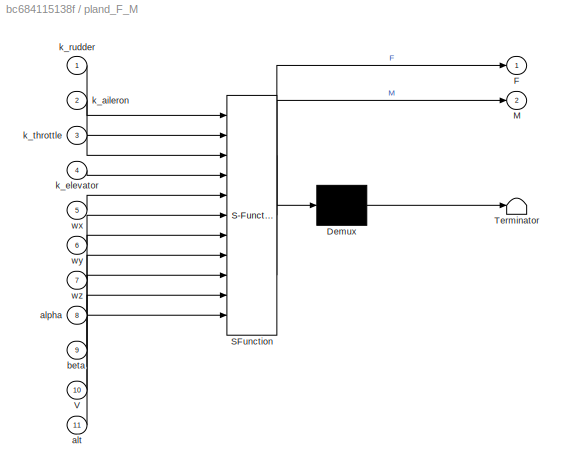
BLOCK [SubSystem] pland_F_M
  ErrorFcn = Stateflow.Translate.translate
  PermitHierarchicalResolution = ExplicitOnly
  Ports = [11, 2]
  RequestExecContextInheritance = off
  SFBlockType = MATLAB Function
  TreatAsAtomicUnit = on
BLOCK [Demux] pland_F_M/ Demux 
  Outputs = 1
  Ports = [1, 1]
BLOCK [S-Function] pland_F_M/ SFunction 
  EnableBusSupport = on
  FunctionName = sf_sfun
  PortCounts = [11 3]
  Ports = [11, 3]
  SFcnIsStateOwnerBlock = off
  SFunctionDeploymentMode = off
  Tag = Stateflow S-Function att1 3
BLOCK [Terminator] pland_F_M/ Terminator 
BLOCK [Outport] pland_F_M/F
  IconDisplay = Port number
BLOCK [Outport] pland_F_M/M
  IconDisplay = Port number
  Port = 2
BLOCK [Inport] pland_F_M/V
  IconDisplay = Port number
  Port = 10
BLOCK [Inport] pland_F_M/alpha
  IconDisplay = Port number
  Port = 8
BLOCK [Inport] pland_F_M/alt
  IconDisplay = Port number
  Port = 11
BLOCK [Inport] pland_F_M/beta
  IconDisplay = Port number
  Port = 9
BLOCK [Inport] pland_F_M/k_aileron
  IconDisplay = Port number
  Port = 2
BLOCK [Inport] pland_F_M/k_elevator
  IconDisplay = Port number
  Port = 4
BLOCK [Inport] pland_F_M/k_rudder
  IconDisplay = Port number
BLOCK [Inport] pland_F_M/k_throttle
  IconDisplay = Port number
  Port = 3
BLOCK [Inport] pland_F_M/wx
  IconDisplay = Port number
  Port = 5
BLOCK [Inport] pland_F_M/wy
  IconDisplay = Port number
  Port = 6
BLOCK [Inport] pland_F_M/wz
  IconDisplay = Port number
  Port = 7
BLOCK [DataStoreMemory] ptchDamp
  DataStoreName = ptchDamp
  InitialValue = ptchDamp
  OutDataTypeStr = double
  ReadBeforeWriteMsg = warning
  ShowAdditionalParam = off
  SignalType = real
  VectorParams1D = off
  WriteAfterReadMsg = warning
  WriteAfterWriteMsg = warning
BLOCK [DataStoreMemory] reverse
  DataStoreName = reverse
  InitialValue = reverse
  OutDataTypeStr = double
  ReadBeforeWriteMsg = warning
  ShowAdditionalParam = off
  SignalType = real
  VectorParams1D = off
  WriteAfterReadMsg = warning
  WriteAfterWriteMsg = warning
BLOCK [DataStoreMemory] roll
  DataStoreName = roll
  InitialValue = roll
  OutDataTypeStr = double
  ReadBeforeWriteMsg = warning
  ShowAdditionalParam = off
  SignalType = real
  WriteAfterReadMsg = warning
  WriteAfterWriteMsg = warning
BLOCK [DataStoreMemory] rollComp
  DataStoreName = rollComp
  InitialValue = rollComp
  OutDataTypeStr = double
  ReadBeforeWriteMsg = warning
  ShowAdditionalParam = off
  SignalType = real
  VectorParams1D = off
  WriteAfterReadMsg = warning
  WriteAfterWriteMsg = warning
BLOCK [DataStoreMemory] roll_ff_pitch
  DataStoreName = roll_ff_pitch
  InitialValue = roll_ff_pitch
  OutDataTypeStr = double
  ReadBeforeWriteMsg = warning
  ShowAdditionalParam = off
  SignalType = real
  WriteAfterReadMsg = warning
  WriteAfterWriteMsg = warning
BLOCK [DataStoreMemory] roll_limit_cd
  DataStoreName = roll_limit_cd
  InitialValue = roll_limit_cd
  OutDataTypeStr = double
  ReadBeforeWriteMsg = warning
  ShowAdditionalParam = off
  SignalType = real
  WriteAfterReadMsg = warning
  WriteAfterWriteMsg = warning
BLOCK [DataStoreMemory] rot_body_to_ned
  DataStoreName = rot_body_to_ned
  InitialValue = rot_body_to_ned
  OutDataTypeStr = double
  ReadBeforeWriteMsg = warning
  ShowAdditionalParam = off
  SignalType = real
  VectorParams1D = off
  WriteAfterReadMsg = warning
  WriteAfterWriteMsg = warning
BLOCK [DataStoreMemory] scaling_speed
  DataStoreName = scaling_speed
  InitialValue = scaling_speed
  OutDataTypeStr = double
  ReadBeforeWriteMsg = warning
  ShowAdditionalParam = off
  SignalType = real
  WriteAfterReadMsg = warning
  WriteAfterWriteMsg = warning
BLOCK [DataStoreMemory] smoothed_airspeed
  DataStoreName = smoothed_airspeed
  InitialValue = smoothed_airspeed
  OutDataTypeStr = double
  ReadBeforeWriteMsg = warning
  ShowAdditionalParam = off
  SignalType = real
  WriteAfterReadMsg = warning
  WriteAfterWriteMsg = warning
BLOCK [DataStoreMemory] spdCompFiltOmega
  DataStoreName = spdCompFiltOmega
  InitialValue = spdCompFiltOmega
  OutDataTypeStr = double
  ReadBeforeWriteMsg = warning
  ShowAdditionalParam = off
  SignalType = real
  VectorParams1D = off
  WriteAfterReadMsg = warning
  WriteAfterWriteMsg = warning
BLOCK [DataStoreMemory] spdWeight
  DataStoreName = spdWeight
  InitialValue = spdWeight
  OutDataTypeStr = double
  ReadBeforeWriteMsg = warning
  ShowAdditionalParam = off
  SignalType = real
  VectorParams1D = off
  WriteAfterReadMsg = warning
  WriteAfterWriteMsg = warning
BLOCK [DataStoreMemory] target_airspeed
  DataStoreName = target_airspeed
  InitialValue = target_airspeed
  OutDataTypeStr = double
  ReadBeforeWriteMsg = warning
  ShowAdditionalParam = off
  SignalType = real
  VectorParams1D = off
  WriteAfterReadMsg = warning
  WriteAfterWriteMsg = warning
BLOCK [DataStoreMemory] target_bearing_cd
  DataStoreName = target_bearing_cd
  InitialValue = target_bearing_cd
  OutDataTypeStr = double
  ReadBeforeWriteMsg = warning
  ShowAdditionalParam = off
  SignalType = real
  VectorParams1D = off
  WriteAfterReadMsg = warning
  WriteAfterWriteMsg = warning
BLOCK [DataStoreMemory] thrDamp
  DataStoreName = thrDamp
  InitialValue = thrDamp
  OutDataTypeStr = double
  ReadBeforeWriteMsg = warning
  ShowAdditionalParam = off
  SignalType = real
  VectorParams1D = off
  WriteAfterReadMsg = warning
  WriteAfterWriteMsg = warning
BLOCK [DataStoreMemory] throttle_cruise
  DataStoreName = throttle_cruise
  InitialValue = throttle_cruise
  OutDataTypeStr = double
  ReadBeforeWriteMsg = warning
  ShowAdditionalParam = off
  SignalType = real
  VectorParams1D = off
  WriteAfterReadMsg = warning
  WriteAfterWriteMsg = warning
BLOCK [DataStoreMemory] throttle_dem
  DataStoreName = throttle_dem
  InitialValue = throttle_dem
  OutDataTypeStr = double
  ReadBeforeWriteMsg = warning
  ShowAdditionalParam = off
  SignalType = real
  VectorParams1D = off
  WriteAfterReadMsg = warning
  WriteAfterWriteMsg = warning
BLOCK [DataStoreMemory] throttle_max
  DataStoreName = throttle_max
  InitialValue = throttle_max
  OutDataTypeStr = double
  ReadBeforeWriteMsg = warning
  ShowAdditionalParam = off
  SignalType = real
  VectorParams1D = off
  WriteAfterReadMsg = warning
  WriteAfterWriteMsg = warning
BLOCK [DataStoreMemory] throttle_min
  DataStoreName = throttle_min
  InitialValue = throttle_min
  OutDataTypeStr = double
  ReadBeforeWriteMsg = warning
  ShowAdditionalParam = off
  SignalType = real
  VectorParams1D = off
  WriteAfterReadMsg = warning
  WriteAfterWriteMsg = warning
BLOCK [DataStoreMemory] throttle_slewrate
  DataStoreName = throttle_slewrate
  InitialValue = throttle_slewrate
  OutDataTypeStr = double
  ReadBeforeWriteMsg = warning
  ShowAdditionalParam = off
  SignalType = real
  VectorParams1D = off
  WriteAfterReadMsg = warning
  WriteAfterWriteMsg = warning
BLOCK [DataStoreMemory] timeConstant
  DataStoreName = timeConstant
  InitialValue = timeConstant
  OutDataTypeStr = double
  ReadBeforeWriteMsg = warning
  ShowAdditionalParam = off
  SignalType = real
  VectorParams1D = off
  WriteAfterReadMsg = warning
  WriteAfterWriteMsg = warning
BLOCK [DataStoreMemory] vel_dot
  DataStoreName = vel_dot
  InitialValue = vel_dot
  OutDataTypeStr = double
  ReadBeforeWriteMsg = warning
  ShowAdditionalParam = off
  SignalType = real
  VectorParams1D = off
  WriteAfterReadMsg = warning
  WriteAfterWriteMsg = warning
BLOCK [DataStoreMemory] vertAccLim
  DataStoreName = vertAccLim
  InitialValue = vertAccLim
  OutDataTypeStr = double
  ReadBeforeWriteMsg = warning
  ShowAdditionalParam = off
  SignalType = real
  VectorParams1D = off
  WriteAfterReadMsg = warning
  WriteAfterWriteMsg = warning
BLOCK [DataStoreMemory] wx
  DataStoreName = wx
  InitialValue = wx
  OutDataTypeStr = double
  ReadBeforeWriteMsg = warning
  ShowAdditionalParam = off
  SignalType = real
  WriteAfterReadMsg = warning
  WriteAfterWriteMsg = warning
BLOCK [DataStoreMemory] wy
  DataStoreName = wy
  InitialValue = wy
  OutDataTypeStr = double
  ReadBeforeWriteMsg = warning
  ShowAdditionalParam = off
  SignalType = real
  WriteAfterReadMsg = warning
  WriteAfterWriteMsg = warning
BLOCK [DataStoreMemory] wz
  DataStoreName = wz
  InitialValue = wz
  OutDataTypeStr = double
  ReadBeforeWriteMsg = warning
  ShowAdditionalParam = off
  SignalType = real
  WriteAfterReadMsg = warning
  WriteAfterWriteMsg = warning
BLOCK [DataStoreMemory] yaw
  DataStoreName = yaw
  InitialValue = yaw
  OutDataTypeStr = double
  ReadBeforeWriteMsg = warning
  ShowAdditionalParam = off
  SignalType = real
  VectorParams1D = off
  WriteAfterReadMsg = warning
  WriteAfterWriteMsg = warning
LINE 6DOF (Euler Angles):2 -> Demux1:1
LINE 6DOF (Euler Angles):3 -> Demux3:1
LINE 6DOF (Euler Angles):4 -> Inertial to Body:1
LINE 6DOF (Euler Angles):5 -> Incidence, Sideslip & Airspeed:1
NET 6DOF (Euler Angles):6 -> Demux2:1, Demux:1
NET Add:1 -> 6DOF (Euler Angles):1, Scope1:1
LINE Constant10:1 -> get_servo_out:7
LINE Constant11:1 -> get_servo_out:8
LINE Constant1:1 -> get_servo_out:2
LINE Constant6:1 -> get_servo_out:3
LINE Constant7:1 -> get_servo_out:4
LINE Constant8:1 -> get_servo_out:5
LINE Constant9:1 -> get_servo_out:6
LINE Constant:1 -> get_servo_out:1
NET Data Store Read1:1 -> Scope3:1, pland_F_M:2
NET Data Store Read2:1 -> Scope4:1, pland_F_M:3
NET Data Store Read3:1 -> Scope5:1, pland_F_M:4
NET Data Store Read:1 -> Scope2:1, pland_F_M:1
LINE Demux1:1 -> Terminator1:1
LINE Demux1:2 -> Terminator:1
LINE Demux1:3 -> Gain:1
LINE Demux3:1 -> Data Store Write8:1
LINE Demux3:2 -> Data Store Write10:1
LINE Demux3:3 -> Data Store Write9:1
LINE Demux:1 -> pland_F_M:5
LINE Demux:2 -> pland_F_M:6
LINE Demux:3 -> pland_F_M:7
LINE Gain:1 -> pland_F_M:11
LINE Gravity in Earth Axes:1 -> Inertial to Body:2
LINE Incidence, Sideslip & Airspeed:1 -> pland_F_M:8
LINE Incidence, Sideslip & Airspeed:2 -> pland_F_M:9
LINE Incidence, Sideslip & Airspeed:3 -> pland_F_M:10
LINE Inertial to Body:1 -> Add:2
LINE gn:1 -> Gravity in Earth Axes:1
LINE pland_F_M:1 -> Add:1
NET pland_F_M:2 -> 6DOF (Euler Angles):2, Scope:1
note: NET lines group one-source signal fan-out (src -> all destinations, sorted); 1:1 wires keep LINE
CHART get_servo_out states=1 transitions=1
  STATE_LABEL 'eML_blk_kernel()'
  STATE_LABEL 'SCRIPT:\nfunction get_servo_out(   hgt_dem_cm, EAS_dem_cm, center_WP,   radius,   loiter_direction,prev_WP,  next_WP,  dist_min)\nglobal aerodynamic_load_factor\n% update_pitch_throttle(  hgt_dem_cm,EAS_dem_cm,aerodynamic_load_factor)\n% update_loiter( center_WP,   radius,   loiter_direction)\n% update_waypoint( prev_WP,  next_WP,  dist_min)\ncalc_nav_pitch();\ncalc_nav_roll()\ncalc_throttle()\nstabilize()...<+4ch>'
CHART pland_F_M states=1 transitions=1
  STATE_LABEL 'eML_blk_kernel()'
  STATE_LABEL 'SCRIPT:\nfunction [F,M]   = pland_F_M(k_rudder,k_aileron,k_throttle,k_elevator,wx,wy,wz,alpha,beta,V,alt)\n    \n%推力模型，Thr=throttle_dem*Tmax，throttle_dem=24N。\n%阻力模型，Cx_Sref=Cx_Sref_alpha*alpha,Cx_Sref_alpha=0.007;\n%升力模型  Cy_Sref=Cy_Sref_alpha*(alpha0+alpha),Cy_Sref_alpha=0.022,alpha0=5;\nTmax=36;\n\n% Sref=0.3;\n\nCx_Sref_alpha=0.0215;%50/155/15\nCz_Sref_alpha=0.1075;\nHD=180/pi;\nalpha0=3/HD;\n\nCx_Sref=Cx_Sr...<+442ch>'
